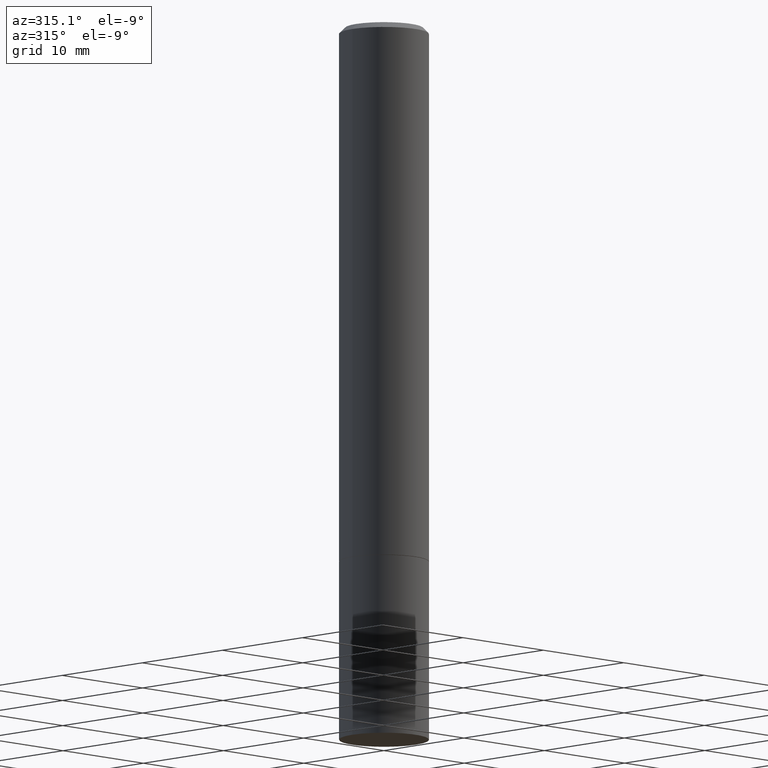
[diagram: clean part render]
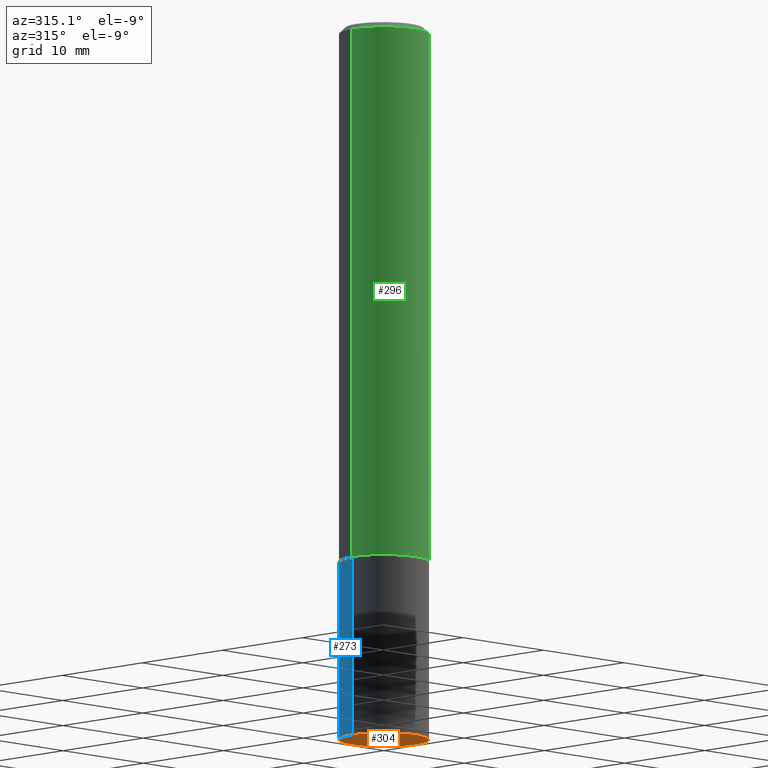
[diagram: same view with three faces highlighted in distinct colors, each labeled with its STEP entity id]
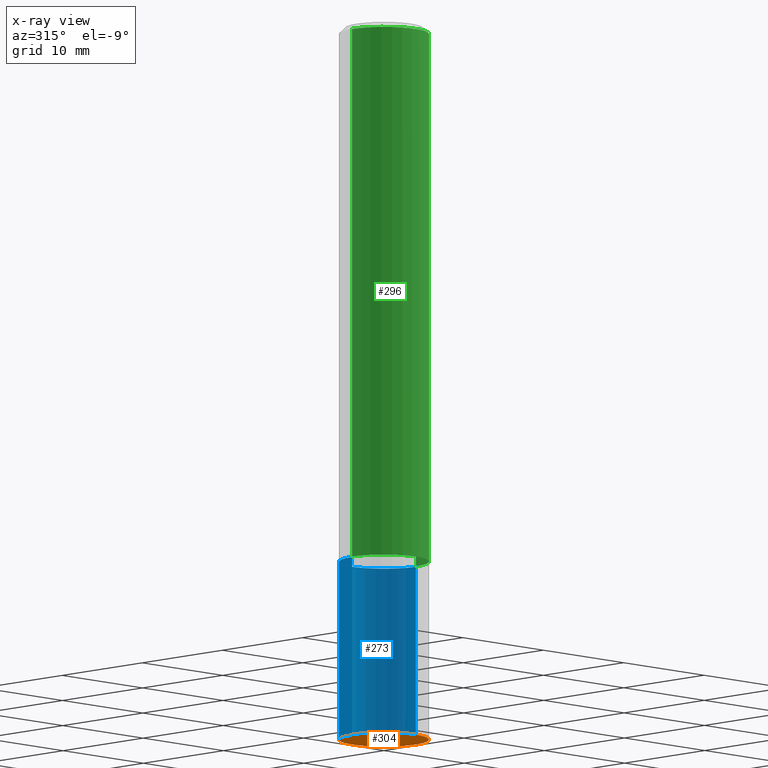
[diagram: x-ray of the same camera — body ghosted, the three highlighted faces saturated]
A machine part, auxiliary view with three faces highlighted in distinct colors.
The next image is the same camera in x-ray (body ghosted, the three faces saturated) — at least one of them is partly hidden behind the body in this view.
Their STEP definitions:

[orange] entity #304 — the highlighted planar face has unit normal (0, -0, -1).
#3 = EDGE_CURVE ( 'NONE', #252, #204, #235, .T. ) ;
#20 = DIRECTION ( 'NONE',  ( -2.445468806185136597E-29, 3.491481338843145583E-15, 1.000000000000000000 ) ) ;
#24 = AXIS2_PLACEMENT_3D ( 'NONE', #105, #191, #271 ) ;
#43 = PLANE ( 'NONE',  #24 ) ;
#50 = ORIENTED_EDGE ( 'NONE', *, *, #207, .F. ) ;
#105 = CARTESIAN_POINT ( 'NONE',  ( 1.091087918388540310E-15, 0.1562499999999912570, -2.500000000000000444 ) ) ;
#118 = DIRECTION ( 'NONE',  ( -2.445468806185136597E-29, 3.491481338843145583E-15, 1.000000000000000000 ) ) ;
#132 = CARTESIAN_POINT ( 'NONE',  ( 0.1562500000000000000, -9.819791265496344905E-15, -2.500000000000000000 ) ) ;
#133 = DIRECTION ( 'NONE',  ( 1.000000000000000000, -6.982962677686269077E-15, 0.000000000000000000 ) ) ;
#158 = AXIS2_PLACEMENT_3D ( 'NONE', #290, #118, #180 ) ;
#159 = CARTESIAN_POINT ( 'NONE',  ( 6.113672015462842613E-29, -8.728703347107864943E-15, -2.500000000000000000 ) ) ;
#180 = DIRECTION ( 'NONE',  ( 1.000000000000000000, -6.982962677686269077E-15, 0.000000000000000000 ) ) ;
#191 = DIRECTION ( 'NONE',  ( 2.438088387897960049E-29, -3.491481338843145188E-15, -1.000000000000000000 ) ) ;
#204 = VERTEX_POINT ( 'NONE', #218 ) ;
#207 = EDGE_CURVE ( 'NONE', #204, #252, #354, .T. ) ;
#214 = FACE_OUTER_BOUND ( 'NONE', #345, .T. ) ;
#218 = CARTESIAN_POINT ( 'NONE',  ( -0.1562500000000000000, -6.527392404094224496E-15, -2.500000000000000000 ) ) ;
#220 = AXIS2_PLACEMENT_3D ( 'NONE', #159, #20, #133 ) ;
#225 = ORIENTED_EDGE ( 'NONE', *, *, #3, .F. ) ;
#235 = CIRCLE ( 'NONE', #158, 0.1562500000000000000 ) ;
#252 = VERTEX_POINT ( 'NONE', #132 ) ;
#271 = DIRECTION ( 'NONE',  ( -1.000000000000000000, 6.982962677686265922E-15, -4.876176775795935793E-29 ) ) ;
#290 = CARTESIAN_POINT ( 'NONE',  ( 6.113672015462842613E-29, -8.728703347107864943E-15, -2.500000000000000000 ) ) ;
#304 = ADVANCED_FACE ( 'NONE', ( #214 ), #43, .T. ) ;
#345 = EDGE_LOOP ( 'NONE', ( #225, #50 ) ) ;
#354 = CIRCLE ( 'NONE', #220, 0.1562500000000000000 ) ;

[blue] entity #273 — the highlighted cylindrical surface (partial cylindrical patch) has radius 3.9688 mm, axis along (-0, 0, 1).
#3 = EDGE_CURVE ( 'NONE', #252, #204, #235, .T. ) ;
#4 = VERTEX_POINT ( 'NONE', #42 ) ;
#23 = CARTESIAN_POINT ( 'NONE',  ( 0.000000000000000000, 0.000000000000000000, 0.000000000000000000 ) ) ;
#25 = VECTOR ( 'NONE', #195, 39.37007874015748143 ) ;
#36 = ORIENTED_EDGE ( 'NONE', *, *, #3, .T. ) ;
#42 = CARTESIAN_POINT ( 'NONE',  ( -0.1562500000000000000, -6.527392404094224496E-15, -1.875000000000000000 ) ) ;
#52 = ORIENTED_EDGE ( 'NONE', *, *, #154, .F. ) ;
#65 = DIRECTION ( 'NONE',  ( -2.445468806185136597E-29, 3.491481338843145583E-15, 1.000000000000000000 ) ) ;
#73 = DIRECTION ( 'NONE',  ( 1.000000000000000000, -6.982962677686266711E-15, 4.876176775795936353E-29 ) ) ;
#74 = AXIS2_PLACEMENT_3D ( 'NONE', #211, #65, #151 ) ;
#83 = ORIENTED_EDGE ( 'NONE', *, *, #361, .T. ) ;
#115 = ORIENTED_EDGE ( 'NONE', *, *, #134, .F. ) ;
#118 = DIRECTION ( 'NONE',  ( -2.445468806185136597E-29, 3.491481338843145583E-15, 1.000000000000000000 ) ) ;
#119 = LINE ( 'NONE', #351, #344 ) ;
#132 = CARTESIAN_POINT ( 'NONE',  ( 0.1562500000000000000, -9.819791265496344905E-15, -2.500000000000000000 ) ) ;
#134 = EDGE_CURVE ( 'NONE', #252, #174, #119, .T. ) ;
#151 = DIRECTION ( 'NONE',  ( 1.000000000000000000, -6.982962677686269077E-15, 0.000000000000000000 ) ) ;
#154 = EDGE_CURVE ( 'NONE', #174, #4, #270, .T. ) ;
#157 = DIRECTION ( 'NONE',  ( -2.445468806185136597E-29, 3.491481338843145583E-15, 1.000000000000000000 ) ) ;
#158 = AXIS2_PLACEMENT_3D ( 'NONE', #290, #118, #180 ) ;
#174 = VERTEX_POINT ( 'NONE', #234 ) ;
#180 = DIRECTION ( 'NONE',  ( 1.000000000000000000, -6.982962677686269077E-15, 0.000000000000000000 ) ) ;
#185 = CYLINDRICAL_SURFACE ( 'NONE', #245, 0.1562500000000000000 ) ;
#195 = DIRECTION ( 'NONE',  ( -2.445468806185136877E-29, 3.491481338843145188E-15, 1.000000000000000000 ) ) ;
#203 = LINE ( 'NONE', #362, #25 ) ;
#204 = VERTEX_POINT ( 'NONE', #218 ) ;
#211 = CARTESIAN_POINT ( 'NONE',  ( 4.585254011597131119E-29, -6.546527510330898707E-15, -1.875000000000000000 ) ) ;
#218 = CARTESIAN_POINT ( 'NONE',  ( -0.1562500000000000000, -6.527392404094224496E-15, -2.500000000000000000 ) ) ;
#234 = CARTESIAN_POINT ( 'NONE',  ( 0.1562500000000000000, -7.637615428719378669E-15, -1.875000000000000000 ) ) ;
#235 = CIRCLE ( 'NONE', #158, 0.1562500000000000000 ) ;
#244 = FACE_OUTER_BOUND ( 'NONE', #275, .T. ) ;
#245 = AXIS2_PLACEMENT_3D ( 'NONE', #23, #157, #73 ) ;
#252 = VERTEX_POINT ( 'NONE', #132 ) ;
#270 = CIRCLE ( 'NONE', #74, 0.1562500000000000000 ) ;
#273 = ADVANCED_FACE ( 'NONE', ( #244 ), #185, .T. ) ;
#275 = EDGE_LOOP ( 'NONE', ( #36, #83, #52, #115 ) ) ;
#290 = CARTESIAN_POINT ( 'NONE',  ( 6.113672015462842613E-29, -8.728703347107864943E-15, -2.500000000000000000 ) ) ;
#320 = DIRECTION ( 'NONE',  ( -2.445468806185136877E-29, 3.491481338843145188E-15, 1.000000000000000000 ) ) ;
#344 = VECTOR ( 'NONE', #320, 39.37007874015748143 ) ;
#351 = CARTESIAN_POINT ( 'NONE',  ( 0.1562500000000000000, -1.091087918388479174E-15, 7.619026212181150377E-30 ) ) ;
#361 = EDGE_CURVE ( 'NONE', #204, #4, #203, .T. ) ;
#362 = CARTESIAN_POINT ( 'NONE',  ( -0.1562500000000000000, 1.110223024625156540E-15, -7.685836078523291160E-30 ) ) ;

[green] entity #296 — the highlighted cylindrical surface (partial cylindrical patch) has radius 3.9687 mm, axis along (-0, 0, 1).
#14 = CIRCLE ( 'NONE', #319, 0.1562500000000000000 ) ;
#15 = LINE ( 'NONE', #124, #110 ) ;
#19 = CIRCLE ( 'NONE', #46, 0.1562499999999998057 ) ;
#29 = VERTEX_POINT ( 'NONE', #39 ) ;
#33 = ORIENTED_EDGE ( 'NONE', *, *, #176, .F. ) ;
#39 = CARTESIAN_POINT ( 'NONE',  ( 0.1562499999999998057, -1.141782438928663724E-15, -0.02000000000000008021 ) ) ;
#46 = AXIS2_PLACEMENT_3D ( 'NONE', #94, #212, #294 ) ;
#85 = EDGE_LOOP ( 'NONE', ( #315, #168, #116, #33 ) ) ;
#94 = CARTESIAN_POINT ( 'NONE',  ( 4.890937612370293302E-31, -6.982962677686318726E-17, -0.02000000000000008021 ) ) ;
#110 = VECTOR ( 'NONE', #213, 39.37007874015748143 ) ;
#116 = ORIENTED_EDGE ( 'NONE', *, *, #131, .T. ) ;
#124 = CARTESIAN_POINT ( 'NONE',  ( 0.1562499999999999167, -1.091087918388478385E-15, 7.619026212181144772E-30 ) ) ;
#131 = EDGE_CURVE ( 'NONE', #287, #29, #15, .T. ) ;
#143 = VERTEX_POINT ( 'NONE', #352 ) ;
#156 = CARTESIAN_POINT ( 'NONE',  ( -0.1562499999999999167, 1.110223024625155949E-15, -7.685836078523285555E-30 ) ) ;
#160 = CARTESIAN_POINT ( 'NONE',  ( -0.1562499999999998057, 1.021258291611614495E-15, -0.02000000000000008021 ) ) ;
#168 = ORIENTED_EDGE ( 'NONE', *, *, #330, .T. ) ;
#176 = EDGE_CURVE ( 'NONE', #309, #29, #19, .T. ) ;
#212 = DIRECTION ( 'NONE',  ( -2.445468806185136597E-29, 3.491481338843145583E-15, 1.000000000000000000 ) ) ;
#213 = DIRECTION ( 'NONE',  ( -2.445468806185136877E-29, 3.491481338843145188E-15, 1.000000000000000000 ) ) ;
#229 = AXIS2_PLACEMENT_3D ( 'NONE', #242, #298, #269 ) ;
#239 = DIRECTION ( 'NONE',  ( -2.445468806185136877E-29, 3.491481338843145188E-15, 1.000000000000000000 ) ) ;
#242 = CARTESIAN_POINT ( 'NONE',  ( 0.000000000000000000, 0.000000000000000000, 0.000000000000000000 ) ) ;
#269 = DIRECTION ( 'NONE',  ( 1.000000000000000000, -6.982962677686265133E-15, 4.876176775795935232E-29 ) ) ;
#272 = DIRECTION ( 'NONE',  ( 1.000000000000000000, -6.982962677686269077E-15, 0.000000000000000000 ) ) ;
#285 = EDGE_CURVE ( 'NONE', #143, #309, #332, .T. ) ;
#287 = VERTEX_POINT ( 'NONE', #297 ) ;
#294 = DIRECTION ( 'NONE',  ( 1.000000000000000000, -6.982962677686266711E-15, 0.000000000000000000 ) ) ;
#296 = ADVANCED_FACE ( 'NONE', ( #329 ), #358, .T. ) ;
#297 = CARTESIAN_POINT ( 'NONE',  ( 0.1562500000000000000, -7.634123947380534085E-15, -1.874000000000000110 ) ) ;
#298 = DIRECTION ( 'NONE',  ( -2.445468806185136597E-29, 3.491481338843145583E-15, 1.000000000000000000 ) ) ;
#303 = DIRECTION ( 'NONE',  ( -2.445468806185136597E-29, 3.491481338843145583E-15, 1.000000000000000000 ) ) ;
#309 = VERTEX_POINT ( 'NONE', #160 ) ;
#313 = VECTOR ( 'NONE', #239, 39.37007874015748143 ) ;
#315 = ORIENTED_EDGE ( 'NONE', *, *, #285, .F. ) ;
#319 = AXIS2_PLACEMENT_3D ( 'NONE', #357, #303, #272 ) ;
#329 = FACE_OUTER_BOUND ( 'NONE', #85, .T. ) ;
#330 = EDGE_CURVE ( 'NONE', #143, #287, #14, .T. ) ;
#332 = LINE ( 'NONE', #156, #313 ) ;
#352 = CARTESIAN_POINT ( 'NONE',  ( -0.1562500000000000000, -2.196209803259300592E-15, -1.874000000000000110 ) ) ;
#357 = CARTESIAN_POINT ( 'NONE',  ( 4.582808542790945516E-29, -6.543036028992054911E-15, -1.874000000000000110 ) ) ;
#358 = CYLINDRICAL_SURFACE ( 'NONE', #229, 0.1562499999999999167 ) ;